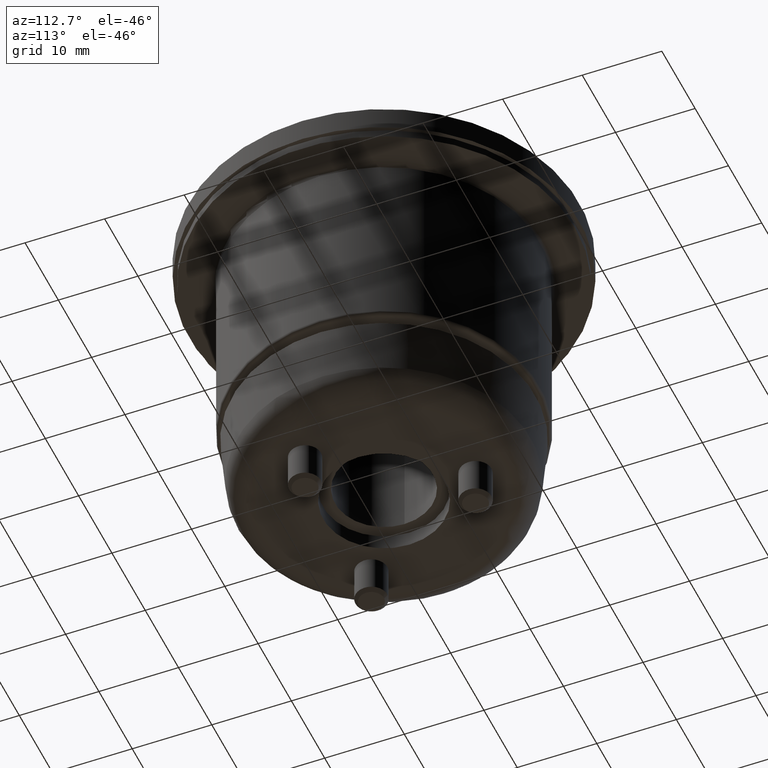
[diagram: clean part render]
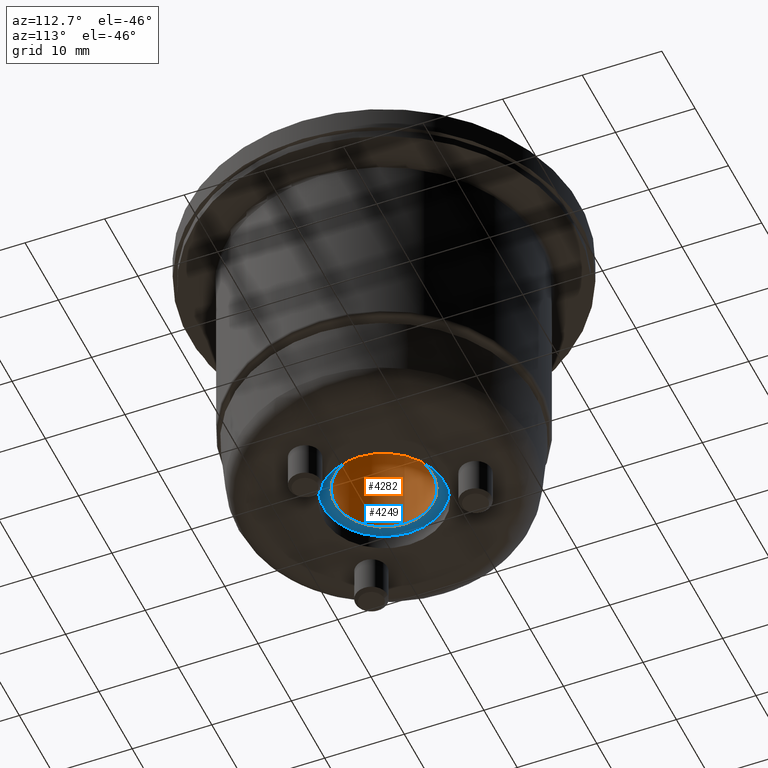
[diagram: same view with the hole feature highlighted: cylindrical wall and planar end face, labeled with their STEP entity ids]
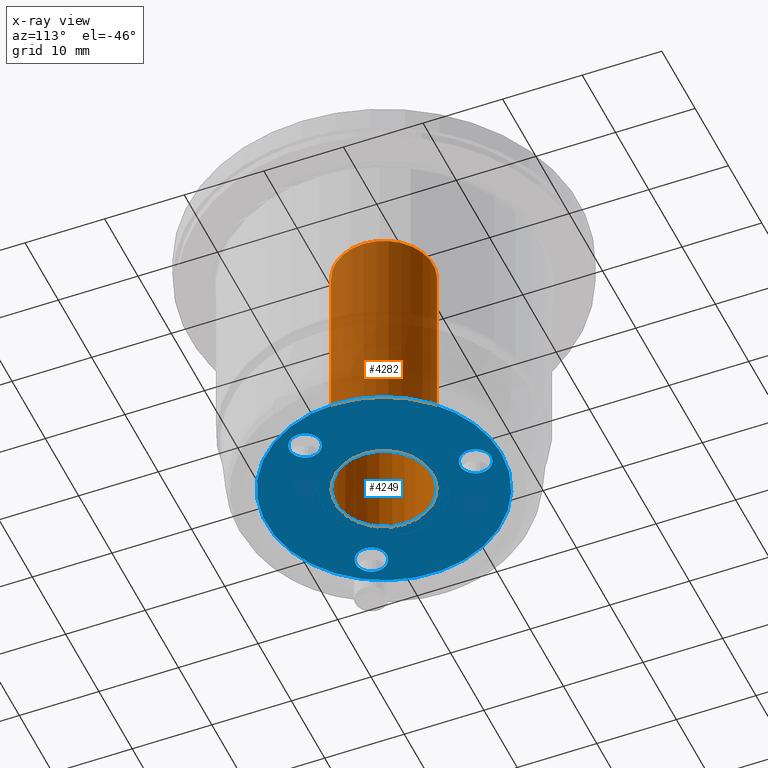
[diagram: x-ray of the same camera — body ghosted, the hole faces saturated]
A machine part, auxiliary view. The highlighted faces form one hole feature of diameter 12.3 mm: the cylindrical wall (entity #4282, orange) and its adjacent planar end face (entity #4249, blue) — they share a circular edge in the B-rep.
The next image is the same camera in x-ray (body ghosted, the hole faces saturated) — the bore reads through the body.
Wall:
#307=CYLINDRICAL_SURFACE('',#4709,6.15);
#502=LINE('',#6085,#848);
#848=VECTOR('',#5159,8.15);
#1220=FACE_OUTER_BOUND('',#1469,.T.);
#1469=EDGE_LOOP('',(#3132,#3133,#3134,#3135));
#1716=CIRCLE('',#4608,6.15);
#1740=CIRCLE('',#4640,6.15);
#1856=VERTEX_POINT('',#5900);
#1876=VERTEX_POINT('',#5953);
#2300=EDGE_CURVE('',#1856,#1856,#1716,.T.);
#2325=EDGE_CURVE('',#1876,#1876,#1740,.F.);
#2389=EDGE_CURVE('',#1856,#1876,#502,.T.);
#3132=ORIENTED_EDGE('',*,*,#2300,.F.);
#3133=ORIENTED_EDGE('',*,*,#2389,.T.);
#3134=ORIENTED_EDGE('',*,*,#2325,.F.);
#3135=ORIENTED_EDGE('',*,*,#2389,.F.);
#4282=ADVANCED_FACE('',(#1220),#307,.F.);
#4608=AXIS2_PLACEMENT_3D('',#5901,#4935,#4936);
#4640=AXIS2_PLACEMENT_3D('',#5954,#5000,#5001);
#4709=AXIS2_PLACEMENT_3D('',#6084,#5157,#5158);
#4935=DIRECTION('center_axis',(0.,0.,1.));
#4936=DIRECTION('ref_axis',(-1.,0.,0.));
#5000=DIRECTION('center_axis',(0.,0.,1.));
#5001=DIRECTION('ref_axis',(-1.,0.,0.));
#5157=DIRECTION('center_axis',(0.,0.,1.));
#5158=DIRECTION('ref_axis',(-1.,0.,0.));
#5159=DIRECTION('',(0.,0.,1.));
#5900=CARTESIAN_POINT('',(6.15,1.3082692937882E-15,0.));
#5901=CARTESIAN_POINT('Origin',(-5.55111512312578E-16,5.55111512312578E-16,
0.));
#5953=CARTESIAN_POINT('',(6.15,1.3082692937882E-15,35.));
#5954=CARTESIAN_POINT('Origin',(-5.55111512312578E-16,5.55111512312578E-16,
35.));
#6084=CARTESIAN_POINT('Origin',(-5.55111512312578E-16,5.55111512312578E-16,
0.));
#6085=CARTESIAN_POINT('',(6.15,1.3082692937882E-15,0.));
End face:
#322=FACE_BOUND('',#1424,.T.);
#323=FACE_BOUND('',#1425,.T.);
#324=FACE_BOUND('',#1426,.T.);
#325=FACE_BOUND('',#1427,.T.);
#374=PLANE('',#4607);
#1187=FACE_OUTER_BOUND('',#1423,.T.);
#1423=EDGE_LOOP('',(#2952,#2953));
#1424=EDGE_LOOP('',(#2954));
#1425=EDGE_LOOP('',(#2955));
#1426=EDGE_LOOP('',(#2956));
#1427=EDGE_LOOP('',(#2957));
#1711=CIRCLE('',#4601,14.7564251047839);
#1712=CIRCLE('',#4602,14.7564251047839);
#1716=CIRCLE('',#4608,6.15);
#1717=CIRCLE('',#4609,1.95);
#1718=CIRCLE('',#4610,1.95);
#1719=CIRCLE('',#4611,1.95);
#1852=VERTEX_POINT('',#5887);
#1853=VERTEX_POINT('',#5889);
#1856=VERTEX_POINT('',#5900);
#1857=VERTEX_POINT('',#5902);
#1858=VERTEX_POINT('',#5904);
#1859=VERTEX_POINT('',#5906);
#2294=EDGE_CURVE('',#1852,#1853,#1711,.T.);
#2295=EDGE_CURVE('',#1853,#1852,#1712,.T.);
#2300=EDGE_CURVE('',#1856,#1856,#1716,.T.);
#2301=EDGE_CURVE('',#1857,#1857,#1717,.T.);
#2302=EDGE_CURVE('',#1858,#1858,#1718,.T.);
#2303=EDGE_CURVE('',#1859,#1859,#1719,.T.);
#2952=ORIENTED_EDGE('',*,*,#2295,.F.);
#2953=ORIENTED_EDGE('',*,*,#2294,.F.);
#2954=ORIENTED_EDGE('',*,*,#2300,.T.);
#2955=ORIENTED_EDGE('',*,*,#2301,.T.);
#2956=ORIENTED_EDGE('',*,*,#2302,.T.);
#2957=ORIENTED_EDGE('',*,*,#2303,.T.);
#4249=ADVANCED_FACE('',(#1187,#322,#323,#324,#325),#374,.T.);
#4601=AXIS2_PLACEMENT_3D('',#5890,#4920,#4921);
#4602=AXIS2_PLACEMENT_3D('',#5891,#4922,#4923);
#4607=AXIS2_PLACEMENT_3D('',#5899,#4933,#4934);
#4608=AXIS2_PLACEMENT_3D('',#5901,#4935,#4936);
#4609=AXIS2_PLACEMENT_3D('',#5903,#4937,#4938);
#4610=AXIS2_PLACEMENT_3D('',#5905,#4939,#4940);
#4611=AXIS2_PLACEMENT_3D('',#5907,#4941,#4942);
#4920=DIRECTION('center_axis',(0.,0.,1.));
#4921=DIRECTION('ref_axis',(0.,1.,0.));
#4922=DIRECTION('center_axis',(0.,0.,1.));
#4923=DIRECTION('ref_axis',(0.,1.,0.));
#4933=DIRECTION('center_axis',(0.,0.,-1.));
#4934=DIRECTION('ref_axis',(-1.,0.,0.));
#4935=DIRECTION('center_axis',(0.,0.,1.));
#4936=DIRECTION('ref_axis',(-1.,0.,0.));
#4937=DIRECTION('center_axis',(0.,0.,1.));
#4938=DIRECTION('ref_axis',(-1.,0.,0.));
#4939=DIRECTION('center_axis',(0.,0.,1.));
#4940=DIRECTION('ref_axis',(0.5,-0.866025403784439,0.));
#4941=DIRECTION('center_axis',(0.,0.,1.));
#4942=DIRECTION('ref_axis',(0.5,0.866025403784438,0.));
#5887=CARTESIAN_POINT('',(-14.7564251047839,-1.80714087714312E-15,0.));
#5889=CARTESIAN_POINT('',(1.80714087714312E-15,-14.7564251047839,0.));
#5890=CARTESIAN_POINT('Origin',(0.,0.,0.));
#5891=CARTESIAN_POINT('Origin',(0.,0.,0.));
#5899=CARTESIAN_POINT('Origin',(-5.55111512312578E-16,5.55111512312578E-16,
0.));
#5900=CARTESIAN_POINT('',(6.15,1.3082692937882E-15,0.));
#5901=CARTESIAN_POINT('Origin',(-5.55111512312578E-16,5.55111512312578E-16,
0.));
#5902=CARTESIAN_POINT('',(-8.00929214352105,5.75,0.));
#5903=CARTESIAN_POINT('Origin',(-9.95929214352105,5.75,0.));
#5904=CARTESIAN_POINT('',(-0.974999999999998,-9.81125046262034,0.));
#5905=CARTESIAN_POINT('Origin',(1.86851945237734E-15,-11.5,0.));
#5906=CARTESIAN_POINT('',(8.98429214352104,4.06125046262034,0.));
#5907=CARTESIAN_POINT('Origin',(9.95929214352105,5.75,0.));